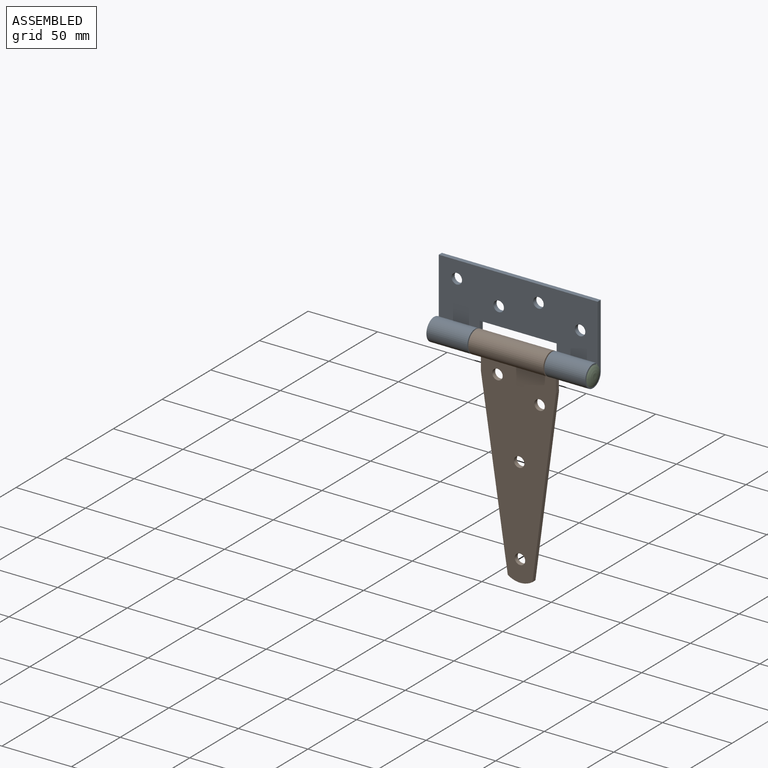
[diagram: assembled view]
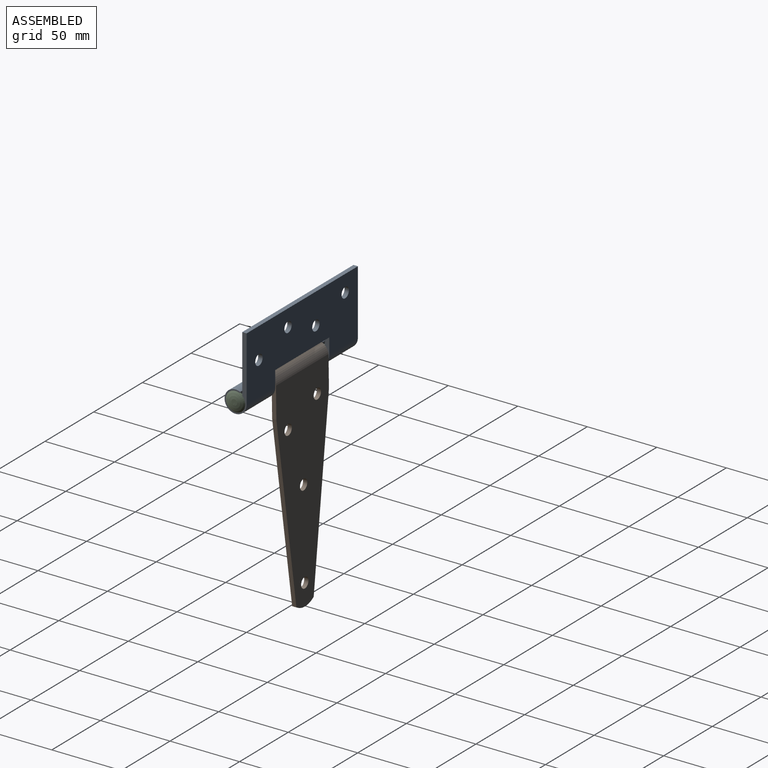
[diagram: assembled view, second angle]
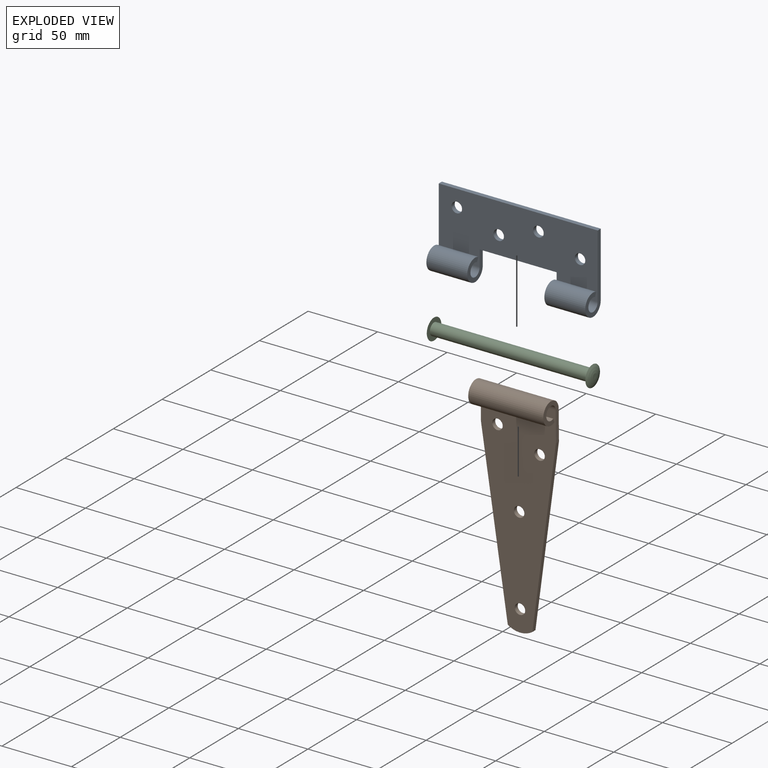
[diagram: exploded view]
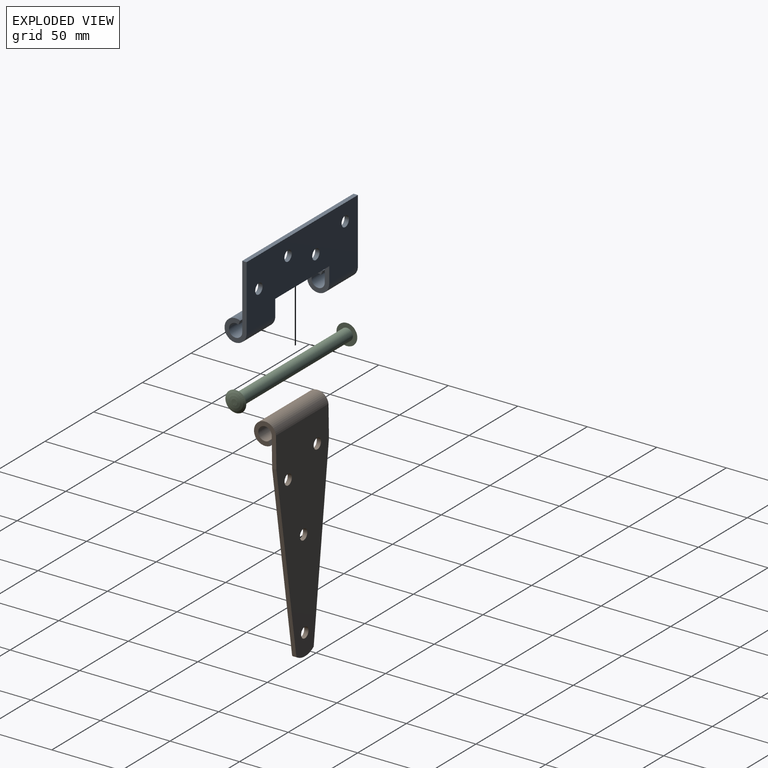
[diagram: exploded view, second angle]
ASSEMBLY  parts=3 mates=2
PART A: 18 faces, bbox 114.3x15.9x54.4 mm
  f0: cylinder r=4.76mm len=29.46mm, axis (-1,0,0), area 722mm2, adj f1,f5,f10,f13
  f1: plane 29.46x2.88mm, normal (0,0.91,-0.42), area 93.5mm2, adj f0,f2,f10,f13
  f2: cylinder r=7.94mm len=29.46mm, axis (-1,0,0), area 1203.4mm2, adj f1,f3,f10,f13
  f3: plane 114.3x46.48mm, normal (0,1,0), area 4502.4mm2, adj f2,f4,f8,f9,f10,f11,f12,f13
  f4: plane 114.3x3.18mm, normal (0,0,1), area 362.9mm2, adj f3,f5,f9,f10
  f5: plane 114.3x46.48mm, normal (0,-1,0), area 4502.4mm2, adj f0,f4,f6,f9,f10,f11,f12,f13
  f6: cylinder r=4.76mm len=29.46mm, axis (-1,0,0), area 722mm2, adj f5,f7,f9,f12
  f7: plane 29.46x2.88mm, normal (0,0.91,-0.42), area 93.5mm2, adj f6,f8,f9,f12
  f8: cylinder r=7.94mm len=29.46mm, axis (-1,0,0), area 1203.4mm2, adj f3,f7,f9,f12
  f9: plane 54.42x15.88mm, normal (1,0,0), area 251.3mm2, adj f3,f4,f5,f6,f7,f8
  f10: plane 54.42x15.88mm, normal (-1,0,0), area 251.3mm2, adj f0,f1,f2,f3,f4,f5
  f11: plane 55.37x3.18mm, normal (0,0,-1), area 175.8mm2, adj f3,f5,f12,f13
  f12: plane 19.37x15.88mm, normal (-1,0,0), area 140mm2, adj f3,f5,f6,f7,f8,f11
  f13: plane 19.37x15.88mm, normal (1,0,0), area 140mm2, adj f0,f1,f2,f3,f5,f11
  f14: cylinder r=3.76mm len=7.52mm, axis (0,1,0), area 75mm2, adj f3,f5
  f15: cylinder r=3.76mm len=7.52mm, axis (0,1,0), area 75mm2, adj f3,f5
  f16: cylinder r=3.76mm len=7.52mm, axis (0,1,0), area 75mm2, adj f3,f5
  f17: cylinder r=3.76mm len=7.52mm, axis (0,1,0), area 75mm2, adj f3,f5
PART B: 14 faces, bbox 54x15.8x160.4 mm
  f0: plane 152.41x53.98mm, normal (0,-1,0), area 5610.6mm2, adj f1,f2,f6,f7,f8,f9,f10,f11
  f1: plane 29.35x15.83mm, normal (-1,0,0), area 167.7mm2, adj f0,f3,f4,f5,f6,f13
  f2: plane 29.35x15.83mm, normal (1,0,0), area 167.7mm2, adj f0,f3,f4,f5,f6,f8
  f3: plane 153.23x53.98mm, normal (0,1,0), area 5654.7mm2, adj f1,f2,f4,f7,f8,f9,f10,f11
  f4: cylinder r=7.94mm len=53.98mm, axis (-1,0,0), area 2178.2mm2, adj f1,f2,f3,f5
  f5: plane 53.98x2.75mm, normal (0,0.89,0.46), area 166.8mm2, adj f1,f2,f4,f6
  f6: cylinder r=4.85mm len=53.98mm, axis (-1,0,0), area 1357.2mm2, adj f0,f1,f2,f5
  f7: cylinder r=15.35mm len=17.78mm, axis (0,1,0), area 57.8mm2, adj f0,f3,f8,f13
  f8: plane 128.17x18.1mm, normal (0.99,0,-0.14), area 394.5mm2, adj f0,f2,f3,f7
  f9: cylinder r=3.76mm len=7.52mm, axis (0,1,0), area 72mm2, adj f0,f3
  f10: cylinder r=3.76mm len=7.52mm, axis (0,1,0), area 72mm2, adj f0,f3
  f11: cylinder r=3.76mm len=7.52mm, axis (0,1,0), area 72mm2, adj f0,f3
  f12: cylinder r=3.76mm len=7.52mm, axis (0,1,0), area 72mm2, adj f0,f3
  f13: plane 128.17x18.1mm, normal (-0.99,0,-0.14), area 394.5mm2, adj f0,f1,f3,f7
PART C: 5 faces, bbox 119.5x15x15 mm
  f0: torus R=1.07mm, axis (1,0,0), area 187.4mm2, adj f1
  f1: plane 15.02x15.02mm, normal (1,0,0), area 118.1mm2, adj f0,f2
  f2: cylinder r=4.33mm len=114.05mm, axis (1,0,0), area 3105.2mm2, adj f1,f3
  f3: plane 15.02x15.02mm, normal (-1,0,0), area 118.1mm2, adj f2,f4
  f4: torus R=1.07mm, axis (1,0,0), area 187.4mm2, adj f3
PLACE A t=(406.51,-790.14,369.85)mm fixed
PLACE B rot(axis=(1,0,0),0.8deg) t=(436.61,-716.85,365.56)mm
PLACE C t=(408.58,-798.08,310.95)mm
MATE revolute B.f4 <-> A.f0  axis (1,0,0) through (490.59,541.74,412.15)mm
MATE fastened C.f0 <-> A.f0  axis (1,0,0) through (406.51,541.74,412.15)mm
